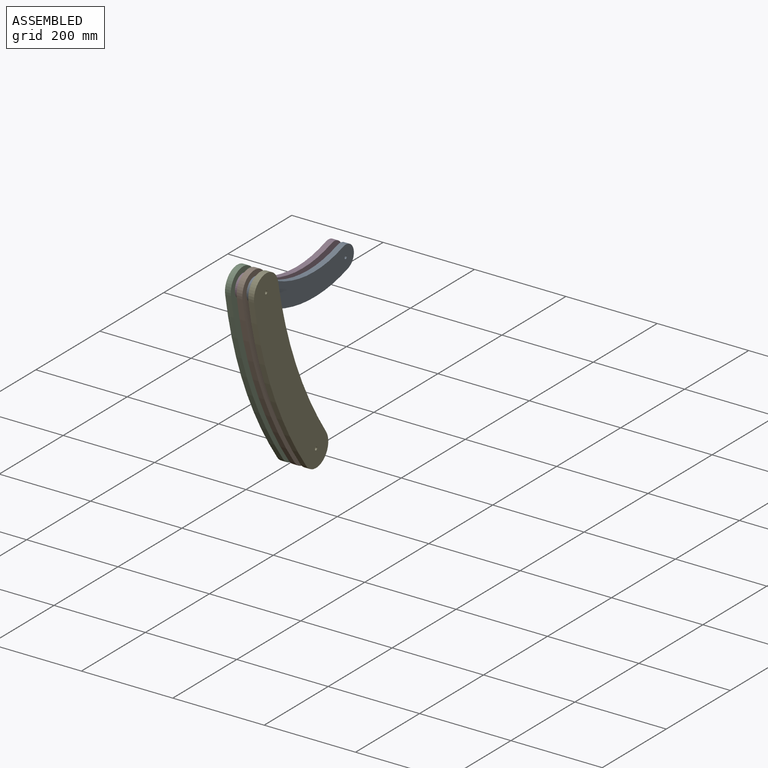
[diagram: assembled view]
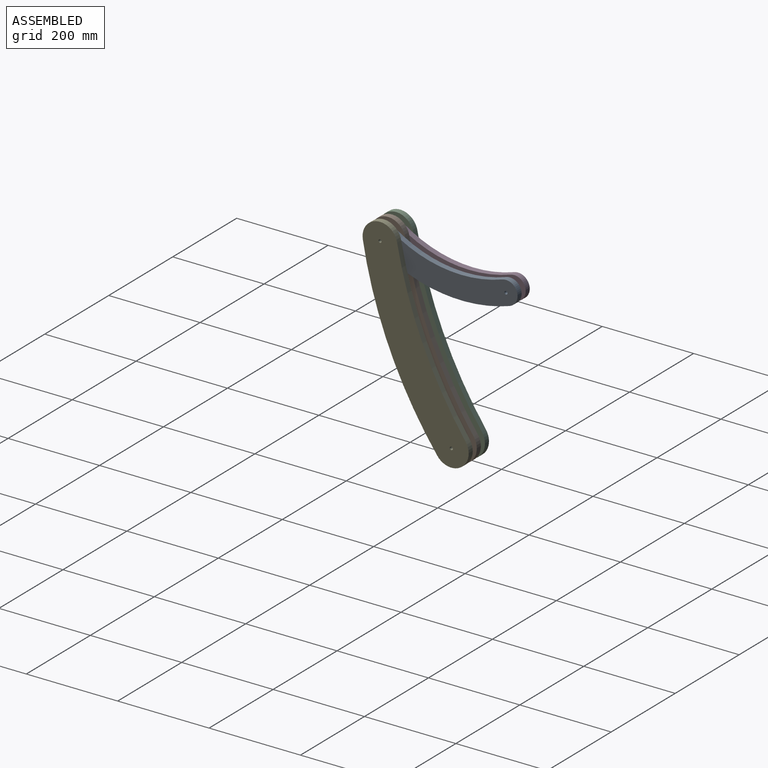
[diagram: assembled view, second angle]
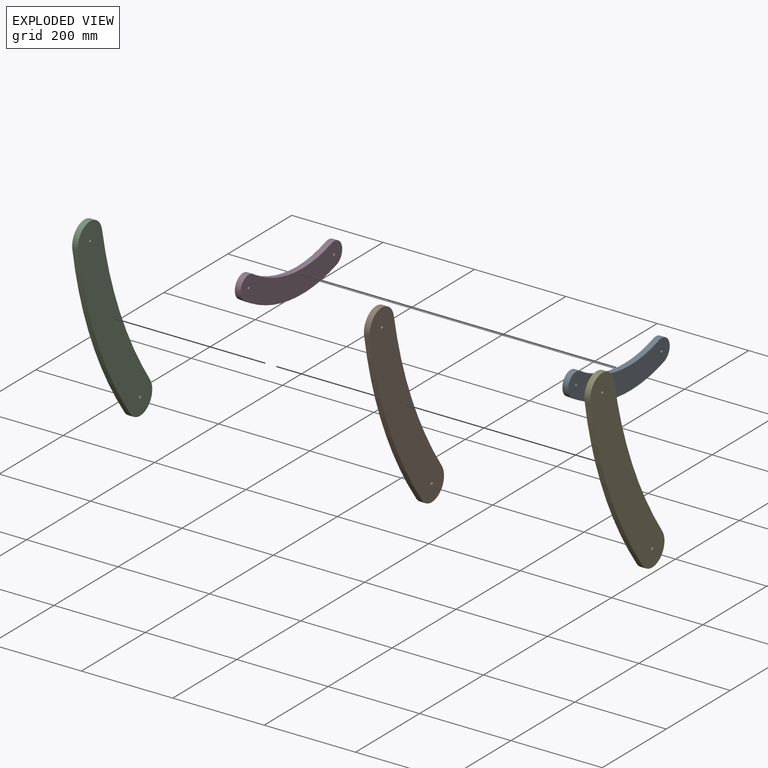
[diagram: exploded view]
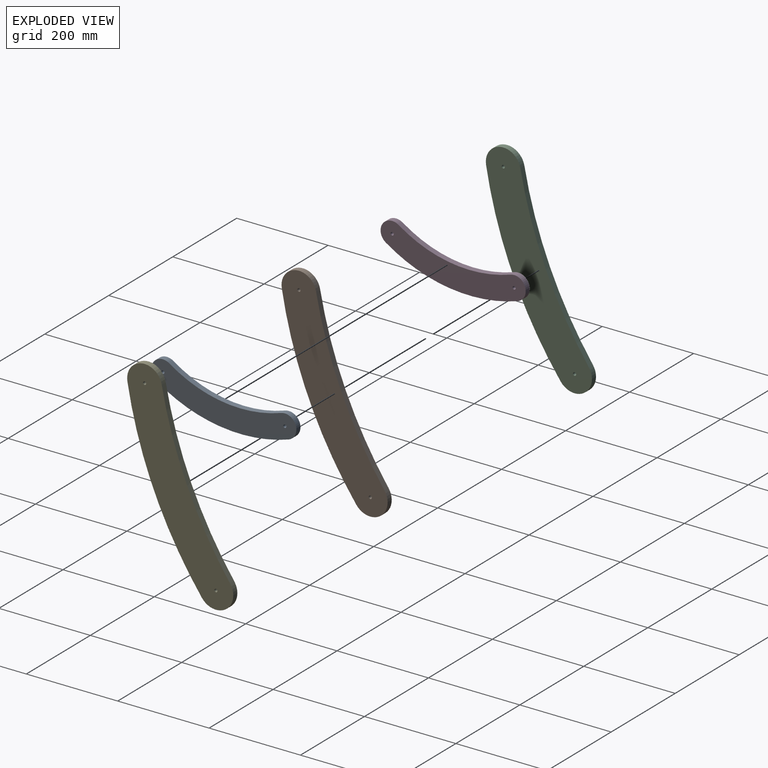
[diagram: exploded view, second angle]
ASSEMBLY  parts=5 mates=4
PART A: 8 faces, bbox 12.7x317.7x102.4 mm
  f0: cylinder r=330.2mm len=289.12mm, axis (1,0,0), area 3836.9mm2, adj f1,f3,f4,f5
  f1: cylinder r=25.4mm len=49.47mm, axis (1,0,0), area 1014.8mm2, adj f0,f2,f4,f5
  f2: cylinder r=276.78mm len=244.45mm, axis (1,0,0), area 3246.2mm2, adj f1,f3,f4,f5
  f3: cylinder r=25.4mm len=46.5mm, axis (1,0,0), area 1014.8mm2, adj f0,f2,f4,f5
  f4: plane 317.68x102.38mm, normal (-1,0,0), area 16070.8mm2, adj f0,f1,f2,f3,f6,f7
  f5: plane 317.68x102.38mm, normal (1,0,0), area 16070.8mm2, adj f0,f1,f2,f3,f6,f7
  f6: cylinder r=3.38mm len=12.7mm, axis (1,0,0), area 269.6mm2, adj f4,f5
  f7: cylinder r=3.38mm len=12.7mm, axis (1,0,0), area 269.6mm2, adj f4,f5
PART B: 8 faces, bbox 12.7x232.3x444.6 mm
  f0: cylinder r=898.01mm len=353.41mm, axis (-1,0,0), area 4912.3mm2, adj f1,f3,f4,f5
  f1: cylinder r=38.1mm len=75.55mm, axis (-1,0,0), area 1510.7mm2, adj f0,f2,f4,f5
  f2: cylinder r=898.01mm len=384.72mm, axis (-1,0,0), area 5355.5mm2, adj f1,f3,f4,f5
  f3: cylinder r=38.1mm len=68.76mm, axis (-1,0,0), area 1510.7mm2, adj f0,f2,f4,f5
  f4: plane 444.6x232.28mm, normal (1,0,0), area 35764.6mm2, adj f0,f1,f2,f3,f6,f7
  f5: plane 444.6x232.28mm, normal (-1,0,0), area 35764.6mm2, adj f0,f1,f2,f3,f6,f7
  f6: cylinder r=3.38mm len=12.7mm, axis (-1,0,0), area 269.6mm2, adj f4,f5
  f7: cylinder r=3.38mm len=12.7mm, axis (-1,0,0), area 269.6mm2, adj f4,f5
PART C: same geometry as B
PART D: same geometry as A
PART E: same geometry as B
PLACE A t=(-77.73,399.38,-659.22)mm
PLACE B t=(-103.13,132.5,-623.57)mm
PLACE C t=(-128.53,132.5,-623.57)mm
PLACE D t=(-103.13,399.38,-659.22)mm
PLACE E t=(-77.73,132.5,-623.57)mm
MATE revolute B.f1 <-> A.f6  axis (1,0,0) through (-164.6,-23.58,414.51)mm
MATE revolute D.f6 <-> B.f1  axis (1,0,0) through (-177.3,-23.58,414.51)mm
MATE revolute C.f1 <-> D.f6  axis (1,0,0) through (-190,-23.58,414.51)mm
MATE revolute A.f6 <-> E.f1  axis (1,0,0) through (-151.9,-23.58,414.51)mm
